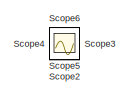
[diagram: root canvas - part 1/2, top right region]
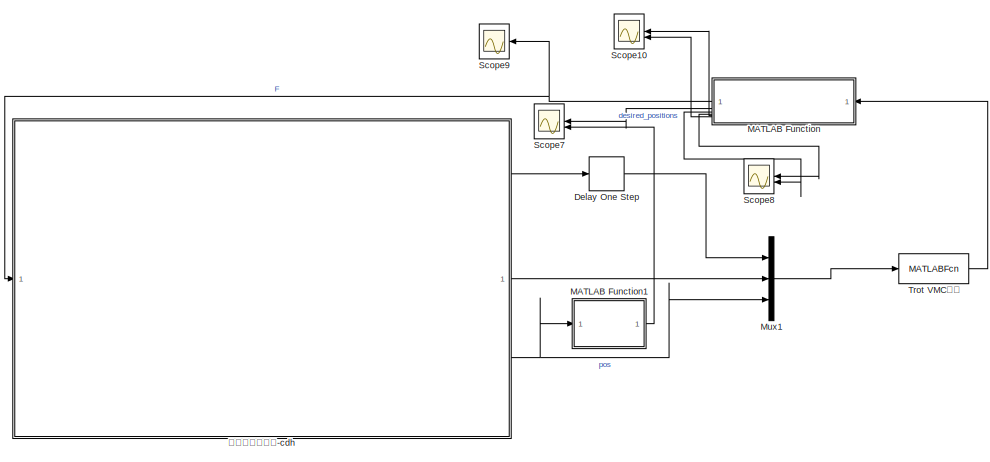
[diagram: root canvas - part 2/2, bottom left region]
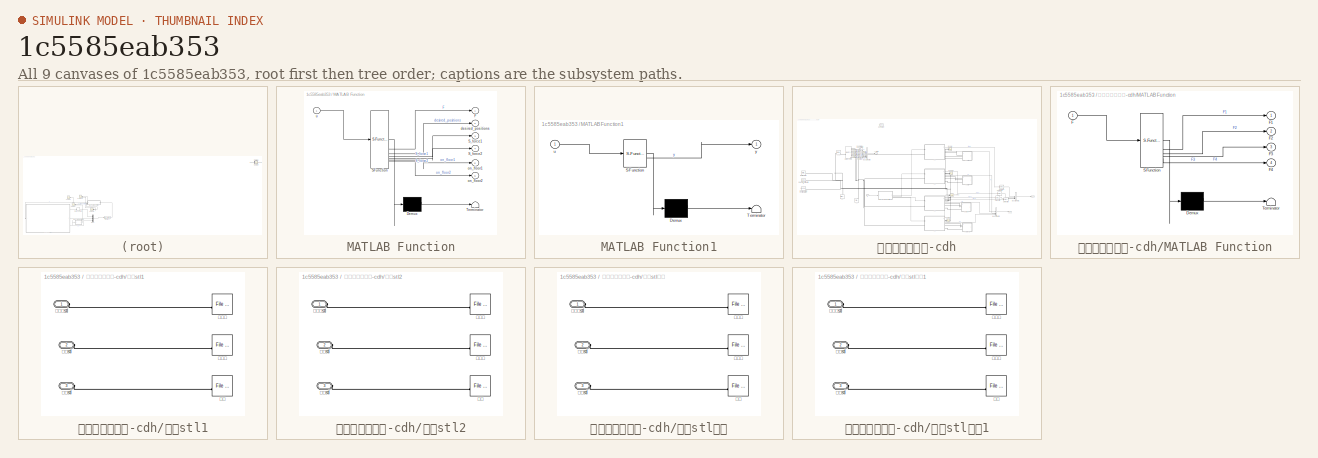
[diagram: thumbnail index - all 9 canvases of the model, root first then tree order]
MODEL slx_1c5585eab353
KIND model
CONFIG AbsTol = 1e-3
CONFIG EnableMultiTasking = on
CONFIG FixedStep = simulink_step
CONFIG MaxStep = 1e-4
CONFIG MinStep = 1e-4
CONFIG RelTol = 1e-3
CONFIG SampleTimeConstraint = Unconstrained
CONFIG SolverName = FixedStepAuto
CONFIG StartTime = 0.0
CONFIG StopTime = stop_time
BLOCK [Delay] Delay One Step
  DelayLength = 1
  InputPortMap = u0
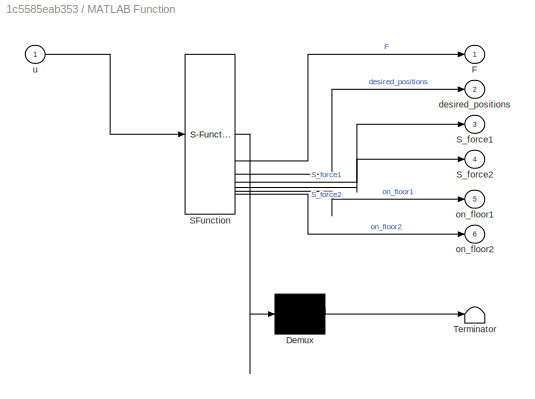
BLOCK [SubSystem] MATLAB Function
  ErrorFcn = Stateflow.Translate.translate
  LibrarySourceBlock = simulink/User-Defined\nFunctions/MATLAB Function
  NameLocation = top
  PermitHierarchicalResolution = ExplicitOnly
  SFBlockType = MATLAB Function
  TreatAsAtomicUnit = on
BLOCK [Demux] MATLAB Function/ Demux 
  Outputs = 1
BLOCK [S-Function] MATLAB Function/ SFunction 
  EnableBusSupport = on
  FunctionName = sf_sfun
  PortCounts = [1 7]
  SFcnIsStateOwnerBlock = off
  SFunctionDeploymentMode = off
  Tag = Stateflow S-Function 2
BLOCK [Terminator] MATLAB Function/ Terminator 
BLOCK [Outport] MATLAB Function/F
BLOCK [Outport] MATLAB Function/S_force1
  Port = 3
BLOCK [Outport] MATLAB Function/S_force2
  Port = 4
BLOCK [Outport] MATLAB Function/desired_positions
  Port = 2
BLOCK [Outport] MATLAB Function/on_floor1
  Port = 5
BLOCK [Outport] MATLAB Function/on_floor2
  Port = 6
BLOCK [Inport] MATLAB Function/u
BLOCK [SubSystem] MATLAB Function1
  ErrorFcn = Stateflow.Translate.translate
  LibrarySourceBlock = simulink/User-Defined\nFunctions/MATLAB Function
  PermitHierarchicalResolution = ExplicitOnly
  SFBlockType = MATLAB Function
  TreatAsAtomicUnit = on
BLOCK [Demux] MATLAB Function1/ Demux 
  Outputs = 1
BLOCK [S-Function] MATLAB Function1/ SFunction 
  EnableBusSupport = on
  FunctionName = sf_sfun
  PortCounts = [1 2]
  SFcnIsStateOwnerBlock = off
  SFunctionDeploymentMode = off
  Tag = Stateflow S-Function 1
BLOCK [Terminator] MATLAB Function1/ Terminator 
BLOCK [Inport] MATLAB Function1/u
BLOCK [Outport] MATLAB Function1/y
BLOCK [Mux] Mux1
  DisplayOption = bar
  Inputs = 3
BLOCK [Scope] Scope
  Floating = off
  IOType = viewer
  NumInputPorts = 1
  ScopeSpecificationString = Simulink.scopes.TimeScopeBlockCfg('CurrentConfiguration', extmgr.ConfigurationSet(extmgr.Configuration('Core','General UI',true),extmgr.Configuration('Core','Source UI',true),extmgr.Configuration('Sources','WiredSimulink',true),extmgr.Configuration('Visuals','Time Domain',true,'SerializedDisplays',{struct('MinYLimReal','-4.00254','MaxYLimReal','4.85091','YLabelReal','','MinYLimMag','0.00000','MaxY...<+1372ch>
BLOCK [Scope] Scope1
  Floating = off
  IOType = viewer
  NumInputPorts = 1
  ScopeSpecificationString = Simulink.scopes.TimeScopeBlockCfg('CurrentConfiguration', extmgr.ConfigurationSet(extmgr.Configuration('Core','General UI',true),extmgr.Configuration('Core','Source UI',true),extmgr.Configuration('Sources','WiredSimulink',true,'DataLoggingVariableName','ScopeData1'),extmgr.Configuration('Visuals','Time Domain',true,'SerializedDisplays',{struct('MinYLimReal','-0.37161','MaxYLimReal','0.13573','YLab...<+1386ch>
BLOCK [Scope] Scope10
  Floating = off
  NameLocation = top
  NumInputPorts = 2
  ScopeSpecificationString = Simulink.scopes.TimeScopeBlockCfg('CurrentConfiguration', extmgr.ConfigurationSet(extmgr.Configuration('Core','General UI',true),extmgr.Configuration('Core','Source UI',true),extmgr.Configuration('Sources','WiredSimulink',true,'DataLoggingVariableName','ScopeData12'),extmgr.Configuration('Visuals','Time Domain',true,'SerializedDisplays',{struct('MinYLimReal','-1.375','MaxYLimReal','2.375','YLabelR...<+2485ch>
BLOCK [Scope] Scope2
  Floating = off
  IOType = viewer
  NumInputPorts = 1
  ScopeSpecificationString = Simulink.scopes.TimeScopeBlockCfg('CurrentConfiguration', extmgr.ConfigurationSet(extmgr.Configuration('Core','General UI',true),extmgr.Configuration('Core','Source UI',true),extmgr.Configuration('Sources','WiredSimulink',true,'DataLoggingVariableName','ScopeData2'),extmgr.Configuration('Visuals','Time Domain',true,'SerializedDisplays',{struct('MinYLimReal','-2.00278','MaxYLimReal','1.14487','YLab...<+1389ch>
BLOCK [Scope] Scope3
  Floating = off
  IOType = viewer
  NumInputPorts = 1
  ScopeSpecificationString = Simulink.scopes.TimeScopeBlockCfg('CurrentConfiguration', extmgr.ConfigurationSet(extmgr.Configuration('Core','General UI',true),extmgr.Configuration('Core','Source UI',true),extmgr.Configuration('Sources','WiredSimulink',true,'DataLoggingVariableName','ScopeData3'),extmgr.Configuration('Visuals','Time Domain',true,'SerializedDisplays',{struct('MinYLimReal','-3.24154','MaxYLimReal','2.88505','YLab...<+1414ch>
BLOCK [Scope] Scope4
  Floating = off
  IOType = viewer
  NumInputPorts = 1
  ScopeSpecificationString = Simulink.scopes.TimeScopeBlockCfg('CurrentConfiguration', extmgr.ConfigurationSet(extmgr.Configuration('Core','General UI',true),extmgr.Configuration('Core','Source UI',true),extmgr.Configuration('Sources','WiredSimulink',true,'DataLoggingVariableName','ScopeData4'),extmgr.Configuration('Visuals','Time Domain',true,'SerializedDisplays',{struct('MinYLimReal','-0.37122','MaxYLimReal','0.13569','YLab...<+1411ch>
BLOCK [Scope] Scope5
  Floating = off
  IOType = viewer
  NumInputPorts = 1
  ScopeSpecificationString = Simulink.scopes.TimeScopeBlockCfg('CurrentConfiguration', extmgr.ConfigurationSet(extmgr.Configuration('Core','General UI',true),extmgr.Configuration('Core','Source UI',true),extmgr.Configuration('Sources','WiredSimulink',true,'DataLoggingVariableName','ScopeData5'),extmgr.Configuration('Visuals','Time Domain',true,'SerializedDisplays',{struct('MinYLimReal','-91.43647','MaxYLimReal','102.20707','Y...<+1396ch>
BLOCK [Scope] Scope6
  Floating = off
  IOType = viewer
  NumInputPorts = 1
  ScopeSpecificationString = Simulink.scopes.TimeScopeBlockCfg('CurrentConfiguration', extmgr.ConfigurationSet(extmgr.Configuration('Core','General UI',true),extmgr.Configuration('Core','Source UI',true),extmgr.Configuration('Sources','WiredSimulink',true,'DataLoggingVariableName','ScopeData6'),extmgr.Configuration('Visuals','Time Domain',true,'SerializedDisplays',{struct('MinYLimReal','-18.94018','MaxYLimReal','25.48686','YL...<+1420ch>
BLOCK [Scope] Scope7
  Floating = off
  NameLocation = top
  NumInputPorts = 2
  ScopeSpecificationString = Simulink.scopes.TimeScopeBlockCfg('CurrentConfiguration', extmgr.ConfigurationSet(extmgr.Configuration('Core','General UI',true),extmgr.Configuration('Core','Source UI',true),extmgr.Configuration('Sources','WiredSimulink',true,'DataLoggingVariableName','ScopeData9'),extmgr.Configuration('Visuals','Time Domain',true,'SerializedDisplays',{struct('MinYLimReal','-0.41326','MaxYLimReal','0.08871','YLab...<+2835ch>
BLOCK [Scope] Scope8
  Floating = off
  NameLocation = top
  NumInputPorts = 2
  ScopeSpecificationString = Simulink.scopes.TimeScopeBlockCfg('CurrentConfiguration', extmgr.ConfigurationSet(extmgr.Configuration('Core','General UI',true),extmgr.Configuration('Core','Source UI',true),extmgr.Configuration('Sources','WiredSimulink',true,'DataLoggingVariableName','ScopeData10'),extmgr.Configuration('Visuals','Time Domain',true,'SerializedDisplays',{struct('MinYLimReal','-16.42607','MaxYLimReal','137.83459','...<+2448ch>
BLOCK [Scope] Scope9
  Floating = off
  NameLocation = top
  NumInputPorts = 2
  ScopeSpecificationString = Simulink.scopes.TimeScopeBlockCfg('CurrentConfiguration', extmgr.ConfigurationSet(extmgr.Configuration('Core','General UI',true),extmgr.Configuration('Core','Source UI',true),extmgr.Configuration('Sources','WiredSimulink',true,'DataLoggingVariableName','ScopeData11'),extmgr.Configuration('Visuals','Time Domain',true,'SerializedDisplays',{struct('MinYLimReal','-1451.09555','MaxYLimReal','2684.85992...<+2364ch>
BLOCK [MATLABFcn] Trot VMC算法
  MATLABFcn = VMC_Trot_Control
  Output1D = off
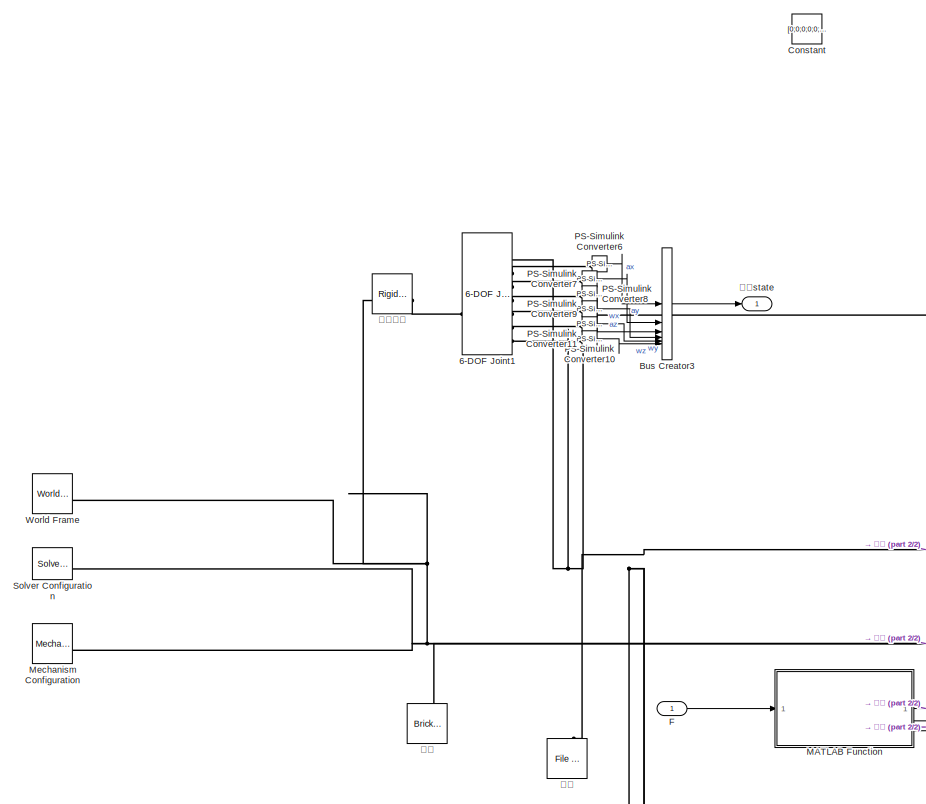
[diagram: 四足机器人模型-cdh - part 1/2, middle left region]
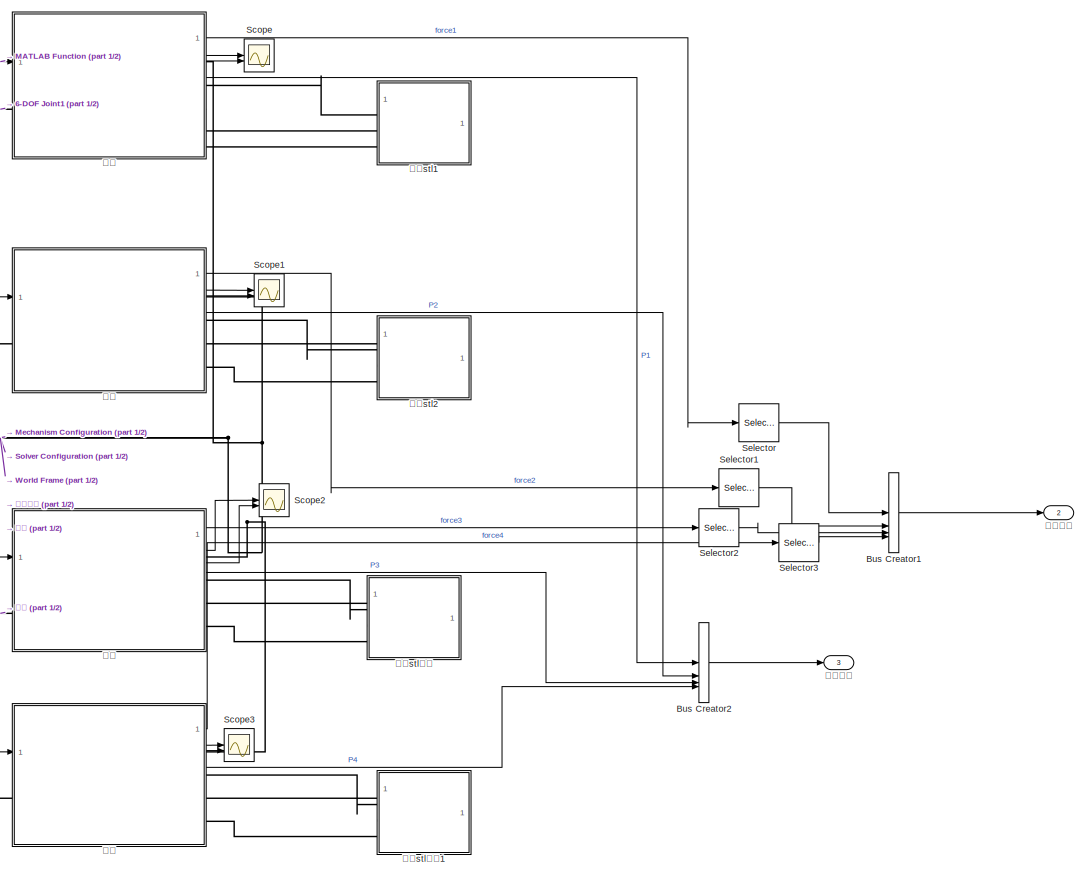
[diagram: 四足机器人模型-cdh - part 2/2, right side, full height]
BLOCK [SubSystem] 四足机器人模型-cdh
BLOCK [Reference] 四足机器人模型-cdh/6-DOF Joint1  REF=sm_lib/Joints/6-DOF Joint
  SourceBlock = sm_lib/Joints/6-DOF Joint
  SourceType = 6-DOF Joint
BLOCK [BusCreator] 四足机器人模型-cdh/Bus Creator1
  DisplayOption = bar
  InheritFromInputs = on
  Inputs = 4
BLOCK [BusCreator] 四足机器人模型-cdh/Bus Creator2
  DisplayOption = bar
  InheritFromInputs = on
  Inputs = 4
BLOCK [BusCreator] 四足机器人模型-cdh/Bus Creator3
  DisplayOption = bar
  InheritFromInputs = on
  Inputs = 6
BLOCK [Constant] 四足机器人模型-cdh/Constant
  Commented = on
  Value = [0;0;0;0;0;0]
BLOCK [Inport] 四足机器人模型-cdh/F
BLOCK [SubSystem] 四足机器人模型-cdh/MATLAB Function
  ErrorFcn = Stateflow.Translate.translate
  LibrarySourceBlock = simulink/User-Defined\nFunctions/MATLAB Function
  PermitHierarchicalResolution = ExplicitOnly
  SFBlockType = MATLAB Function
  TreatAsAtomicUnit = on
BLOCK [Demux] 四足机器人模型-cdh/MATLAB Function/ Demux 
  Outputs = 1
BLOCK [S-Function] 四足机器人模型-cdh/MATLAB Function/ SFunction 
  EnableBusSupport = on
  FunctionName = sf_sfun
  PortCounts = [1 5]
  SFcnIsStateOwnerBlock = off
  SFunctionDeploymentMode = off
  Tag = Stateflow S-Function 36
BLOCK [Terminator] 四足机器人模型-cdh/MATLAB Function/ Terminator 
BLOCK [Inport] 四足机器人模型-cdh/MATLAB Function/F
BLOCK [Outport] 四足机器人模型-cdh/MATLAB Function/F1
BLOCK [Outport] 四足机器人模型-cdh/MATLAB Function/F2
  Port = 2
BLOCK [Outport] 四足机器人模型-cdh/MATLAB Function/F3
  Port = 3
BLOCK [Outport] 四足机器人模型-cdh/MATLAB Function/F4
  Port = 4
BLOCK [Reference] 四足机器人模型-cdh/Mechanism Configuration  REF=sm_lib/Utilities/Mechanism
Configuration
  SourceBlock = sm_lib/Utilities/Mechanism\nConfiguration
  SourceType = Mechanism\nConfiguration
BLOCK [Reference] 四足机器人模型-cdh/PS-Simulink Converter10  REF=nesl_utility/PS-Simulink
Converter
  SourceBlock = nesl_utility/PS-Simulink\nConverter
  SourceType = PS-Simulink\nConverter
BLOCK [Reference] 四足机器人模型-cdh/PS-Simulink Converter11  REF=nesl_utility/PS-Simulink
Converter
  SourceBlock = nesl_utility/PS-Simulink\nConverter
  SourceType = PS-Simulink\nConverter
BLOCK [Reference] 四足机器人模型-cdh/PS-Simulink Converter6  REF=nesl_utility/PS-Simulink
Converter
  SourceBlock = nesl_utility/PS-Simulink\nConverter
  SourceType = PS-Simulink\nConverter
BLOCK [Reference] 四足机器人模型-cdh/PS-Simulink Converter7  REF=nesl_utility/PS-Simulink
Converter
  SourceBlock = nesl_utility/PS-Simulink\nConverter
  SourceType = PS-Simulink\nConverter
BLOCK [Reference] 四足机器人模型-cdh/PS-Simulink Converter8  REF=nesl_utility/PS-Simulink
Converter
  SourceBlock = nesl_utility/PS-Simulink\nConverter
  SourceType = PS-Simulink\nConverter
BLOCK [Reference] 四足机器人模型-cdh/PS-Simulink Converter9  REF=nesl_utility/PS-Simulink
Converter
  SourceBlock = nesl_utility/PS-Simulink\nConverter
  SourceType = PS-Simulink\nConverter
BLOCK [Scope] 四足机器人模型-cdh/Scope
  Floating = off
  NumInputPorts = 2
  ScopeSpecificationString = Simulink.scopes.TimeScopeBlockCfg('CurrentConfiguration', extmgr.ConfigurationSet(extmgr.Configuration('Core','General UI',true),extmgr.Configuration('Core','Source UI',true),extmgr.Configuration('Sources','WiredSimulink',true,'DataLoggingVariableName','ScopeData2'),extmgr.Configuration('Visuals','Time Domain',true,'SerializedDisplays',{struct('MinYLimReal','-49.13292','MaxYLimReal','91.29371','YL...<+1416ch>
BLOCK [Scope] 四足机器人模型-cdh/Scope1
  Floating = off
  NumInputPorts = 2
  ScopeSpecificationString = Simulink.scopes.TimeScopeBlockCfg('CurrentConfiguration', extmgr.ConfigurationSet(extmgr.Configuration('Core','General UI',true),extmgr.Configuration('Core','Source UI',true),extmgr.Configuration('Sources','WiredSimulink',true,'DataLoggingVariableName','ScopeData3'),extmgr.Configuration('Visuals','Time Domain',true),extmgr.Configuration('Tools','Plot Navigation',true),extmgr.Configuration('Tools',...<+58ch>
BLOCK [Scope] 四足机器人模型-cdh/Scope2
  Floating = off
  NumInputPorts = 2
  ScopeSpecificationString = Simulink.scopes.TimeScopeBlockCfg('CurrentConfiguration', extmgr.ConfigurationSet(extmgr.Configuration('Core','General UI',true),extmgr.Configuration('Core','Source UI',true),extmgr.Configuration('Sources','WiredSimulink',true,'DataLoggingVariableName','ScopeData5'),extmgr.Configuration('Visuals','Time Domain',true),extmgr.Configuration('Tools','Plot Navigation',true),extmgr.Configuration('Tools',...<+58ch>
BLOCK [Scope] 四足机器人模型-cdh/Scope3
  Floating = off
  NumInputPorts = 2
  ScopeSpecificationString = Simulink.scopes.TimeScopeBlockCfg('CurrentConfiguration', extmgr.ConfigurationSet(extmgr.Configuration('Core','General UI',true),extmgr.Configuration('Core','Source UI',true),extmgr.Configuration('Sources','WiredSimulink',true,'DataLoggingVariableName','ScopeData6'),extmgr.Configuration('Visuals','Time Domain',true),extmgr.Configuration('Tools','Plot Navigation',true),extmgr.Configuration('Tools',...<+58ch>
BLOCK [Selector] 四足机器人模型-cdh/Selector
  IndexOptions = Index vector (dialog)
  Indices = 1
  InputPortWidth = 11
  OutputSizes = 1
BLOCK [Selector] 四足机器人模型-cdh/Selector1
  IndexOptions = Index vector (dialog)
  Indices = 1
  InputPortWidth = 11
  OutputSizes = 1
BLOCK [Selector] 四足机器人模型-cdh/Selector2
  IndexOptions = Index vector (dialog)
  Indices = 1
  InputPortWidth = 11
  OutputSizes = 1
BLOCK [Selector] 四足机器人模型-cdh/Selector3
  IndexOptions = Index vector (dialog)
  Indices = 1
  InputPortWidth = 11
  OutputSizes = 1
BLOCK [Reference] 四足机器人模型-cdh/Solver Configuration  REF=nesl_utility/Solver
Configuration
  SourceBlock = nesl_utility/Solver\nConfiguration
  SourceType = Solver\nConfiguration
BLOCK [Reference] 四足机器人模型-cdh/World Frame  REF=sm_lib/Frames and
Transforms/World Frame
  SourceBlock = sm_lib/Frames and\nTransforms/World Frame
  SourceType = World Frame
BLOCK [Reference] 四足机器人模型-cdh/主体  REF=sm_lib/Body Elements/File Solid
  SourceBlock = sm_lib/Body Elements/File Solid
  SourceType = File Solid
BLOCK [Reference] 四足机器人模型-cdh/初始高度  REF=sm_lib/Frames and
Transforms/Rigid
Transform
  SourceBlock = sm_lib/Frames and\nTransforms/Rigid\nTransform
  SourceType = Rigid\nTransform
BLOCK [SubSystem] 四足机器人模型-cdh/右前
  ReferencedSubsystem = vmc_single_foot
  dir = -1
  dir2 = 1
BLOCK [SubSystem] 四足机器人模型-cdh/右后 
  ReferencedSubsystem = vmc_single_foot
  dir = -1
  dir2 = -1
BLOCK [Reference] 四足机器人模型-cdh/地面  REF=sm_lib/Body Elements/Brick Solid
  SourceBlock = sm_lib/Body Elements/Brick Solid
  SourceType = Brick Solid
BLOCK [SubSystem] 四足机器人模型-cdh/左前
  ReferencedSubsystem = vmc_single_foot
  dir = 1
  dir2 = 1
BLOCK [SubSystem] 四足机器人模型-cdh/左后
  ReferencedSubsystem = vmc_single_foot
  dir = 1
  dir2 = -1
BLOCK [Outport] 四足机器人模型-cdh/机体state
BLOCK [SubSystem] 四足机器人模型-cdh/腿部stl1
BLOCK [PMIOPort] 四足机器人模型-cdh/腿部stl1/大腿stl 
  Port = 2
  Side = Left
BLOCK [Reference] 四足机器人模型-cdh/腿部stl1/小腿  REF=sm_lib/Body Elements/File Solid
  SourceBlock = sm_lib/Body Elements/File Solid
  SourceType = File Solid
BLOCK [PMIOPort] 四足机器人模型-cdh/腿部stl1/小腿stl 
  Port = 3
  Side = Left
BLOCK [Reference] 四足机器人模型-cdh/腿部stl1/左大腿  REF=sm_lib/Body Elements/File Solid
  SourceBlock = sm_lib/Body Elements/File Solid
  SourceType = File Solid
BLOCK [Reference] 四足机器人模型-cdh/腿部stl1/髋关节  REF=sm_lib/Body Elements/File Solid
  SourceBlock = sm_lib/Body Elements/File Solid
  SourceType = File Solid
BLOCK [PMIOPort] 四足机器人模型-cdh/腿部stl1/髋关节stl 
  Side = Left
BLOCK [SubSystem] 四足机器人模型-cdh/腿部stl2
BLOCK [PMIOPort] 四足机器人模型-cdh/腿部stl2/大腿stl 
  Port = 2
  Side = Left
BLOCK [Reference] 四足机器人模型-cdh/腿部stl2/小腿  REF=sm_lib/Body Elements/File Solid
  SourceBlock = sm_lib/Body Elements/File Solid
  SourceType = File Solid
BLOCK [PMIOPort] 四足机器人模型-cdh/腿部stl2/小腿stl 
  Port = 3
  Side = Left
BLOCK [Reference] 四足机器人模型-cdh/腿部stl2/左大腿  REF=sm_lib/Body Elements/File Solid
  SourceBlock = sm_lib/Body Elements/File Solid
  SourceType = File Solid
BLOCK [Reference] 四足机器人模型-cdh/腿部stl2/髋关节  REF=sm_lib/Body Elements/File Solid
  SourceBlock = sm_lib/Body Elements/File Solid
  SourceType = File Solid
BLOCK [PMIOPort] 四足机器人模型-cdh/腿部stl2/髋关节stl 
  Side = Left
BLOCK [SubSystem] 四足机器人模型-cdh/腿部stl镜像
BLOCK [PMIOPort] 四足机器人模型-cdh/腿部stl镜像/大腿stl 
  Port = 2
  Side = Left
BLOCK [Reference] 四足机器人模型-cdh/腿部stl镜像/小腿  REF=sm_lib/Body Elements/File Solid
  SourceBlock = sm_lib/Body Elements/File Solid
  SourceType = File Solid
BLOCK [PMIOPort] 四足机器人模型-cdh/腿部stl镜像/小腿stl 
  Port = 3
  Side = Left
BLOCK [Reference] 四足机器人模型-cdh/腿部stl镜像/左大腿  REF=sm_lib/Body Elements/File Solid
  SourceBlock = sm_lib/Body Elements/File Solid
  SourceType = File Solid
BLOCK [Reference] 四足机器人模型-cdh/腿部stl镜像/髋关节  REF=sm_lib/Body Elements/File Solid
  SourceBlock = sm_lib/Body Elements/File Solid
  SourceType = File Solid
BLOCK [PMIOPort] 四足机器人模型-cdh/腿部stl镜像/髋关节stl 
  Side = Left
BLOCK [SubSystem] 四足机器人模型-cdh/腿部stl镜像1
BLOCK [PMIOPort] 四足机器人模型-cdh/腿部stl镜像1/大腿stl 
  Port = 2
  Side = Left
BLOCK [Reference] 四足机器人模型-cdh/腿部stl镜像1/小腿  REF=sm_lib/Body Elements/File Solid
  SourceBlock = sm_lib/Body Elements/File Solid
  SourceType = File Solid
BLOCK [PMIOPort] 四足机器人模型-cdh/腿部stl镜像1/小腿stl 
  Port = 3
  Side = Left
BLOCK [Reference] 四足机器人模型-cdh/腿部stl镜像1/左大腿  REF=sm_lib/Body Elements/File Solid
  SourceBlock = sm_lib/Body Elements/File Solid
  SourceType = File Solid
BLOCK [Reference] 四足机器人模型-cdh/腿部stl镜像1/髋关节  REF=sm_lib/Body Elements/File Solid
  SourceBlock = sm_lib/Body Elements/File Solid
  SourceType = File Solid
BLOCK [PMIOPort] 四足机器人模型-cdh/腿部stl镜像1/髋关节stl 
  Side = Left
BLOCK [Outport] 四足机器人模型-cdh/足端位置
  Port = 3
BLOCK [Outport] 四足机器人模型-cdh/足端受力
  Port = 2
LINE Delay One Step:1 -> Mux1:1
LINE MATLAB Function1:1 -> Scope7:2
NET MATLAB Function:1 -> Scope9:1, 四足机器人模型-cdh:1
LINE MATLAB Function:2 -> Scope7:1
LINE MATLAB Function:3 -> Scope8:2
LINE MATLAB Function:4 -> Scope8:1
LINE MATLAB Function:5 -> Scope10:1
LINE MATLAB Function:6 -> Scope10:2
LINE Mux1:1 -> Trot VMC算法:1
LINE Trot VMC算法:1 -> MATLAB Function:1
LINE 四足机器人模型-cdh/Bus Creator1:1 -> 四足机器人模型-cdh/足端受力:1
LINE 四足机器人模型-cdh/Bus Creator2:1 -> 四足机器人模型-cdh/足端位置:1
LINE 四足机器人模型-cdh/Bus Creator3:1 -> 四足机器人模型-cdh/机体state:1
LINE 四足机器人模型-cdh/F:1 -> 四足机器人模型-cdh/MATLAB Function:1
LINE 四足机器人模型-cdh/MATLAB Function:1 -> 四足机器人模型-cdh/左前:1
LINE 四足机器人模型-cdh/MATLAB Function:2 -> 四足机器人模型-cdh/左后:1
LINE 四足机器人模型-cdh/MATLAB Function:3 -> 四足机器人模型-cdh/右后 :1
LINE 四足机器人模型-cdh/MATLAB Function:4 -> 四足机器人模型-cdh/右前:1
LINE 四足机器人模型-cdh/PS-Simulink Converter10:1 -> 四足机器人模型-cdh/Bus Creator3:5
LINE 四足机器人模型-cdh/PS-Simulink Converter11:1 -> 四足机器人模型-cdh/Bus Creator3:6
LINE 四足机器人模型-cdh/PS-Simulink Converter6:1 -> 四足机器人模型-cdh/Bus Creator3:1
LINE 四足机器人模型-cdh/PS-Simulink Converter7:1 -> 四足机器人模型-cdh/Bus Creator3:2
LINE 四足机器人模型-cdh/PS-Simulink Converter8:1 -> 四足机器人模型-cdh/Bus Creator3:3
LINE 四足机器人模型-cdh/PS-Simulink Converter9:1 -> 四足机器人模型-cdh/Bus Creator3:4
LINE 四足机器人模型-cdh/Selector1:1 -> 四足机器人模型-cdh/Bus Creator1:2
LINE 四足机器人模型-cdh/Selector2:1 -> 四足机器人模型-cdh/Bus Creator1:3
LINE 四足机器人模型-cdh/Selector3:1 -> 四足机器人模型-cdh/Bus Creator1:4
LINE 四足机器人模型-cdh/Selector:1 -> 四足机器人模型-cdh/Bus Creator1:1
LINE 四足机器人模型-cdh/右前:1 -> 四足机器人模型-cdh/Selector3:1
LINE 四足机器人模型-cdh/右前:2 -> 四足机器人模型-cdh/Scope3:1
LINE 四足机器人模型-cdh/右前:3 -> 四足机器人模型-cdh/Scope3:2
LINE 四足机器人模型-cdh/右前:4 -> 四足机器人模型-cdh/Bus Creator2:4
LINE 四足机器人模型-cdh/右后 :1 -> 四足机器人模型-cdh/Selector2:1
LINE 四足机器人模型-cdh/右后 :2 -> 四足机器人模型-cdh/Scope2:1
LINE 四足机器人模型-cdh/右后 :3 -> 四足机器人模型-cdh/Scope2:2
LINE 四足机器人模型-cdh/右后 :4 -> 四足机器人模型-cdh/Bus Creator2:3
LINE 四足机器人模型-cdh/左前:1 -> 四足机器人模型-cdh/Selector:1
LINE 四足机器人模型-cdh/左前:2 -> 四足机器人模型-cdh/Scope:1
LINE 四足机器人模型-cdh/左前:3 -> 四足机器人模型-cdh/Scope:2
LINE 四足机器人模型-cdh/左前:4 -> 四足机器人模型-cdh/Bus Creator2:1
LINE 四足机器人模型-cdh/左后:1 -> 四足机器人模型-cdh/Selector1:1
LINE 四足机器人模型-cdh/左后:2 -> 四足机器人模型-cdh/Scope1:1
LINE 四足机器人模型-cdh/左后:3 -> 四足机器人模型-cdh/Scope1:2
LINE 四足机器人模型-cdh/左后:4 -> 四足机器人模型-cdh/Bus Creator2:2
LINE 四足机器人模型-cdh:1 -> Delay One Step:1
LINE 四足机器人模型-cdh:2 -> Mux1:2
NET 四足机器人模型-cdh:3 -> MATLAB Function1:1, Mux1:3
PLINE 四足机器人模型-cdh/6-DOF Joint1:LConn1 -- 四足机器人模型-cdh/初始高度:RConn1
PNET net1: 四足机器人模型-cdh/6-DOF Joint1:RConn1 -- 四足机器人模型-cdh/主体:RConn1 -- 四足机器人模型-cdh/右前:LConn1 -- 四足机器人模型-cdh/右后 :LConn1 -- 四足机器人模型-cdh/左前:LConn1 -- 四足机器人模型-cdh/左后:LConn1
PLINE 四足机器人模型-cdh/6-DOF Joint1:RConn2 -- 四足机器人模型-cdh/PS-Simulink Converter6:LConn1
PLINE 四足机器人模型-cdh/6-DOF Joint1:RConn3 -- 四足机器人模型-cdh/PS-Simulink Converter7:LConn1
PLINE 四足机器人模型-cdh/6-DOF Joint1:RConn4 -- 四足机器人模型-cdh/PS-Simulink Converter8:LConn1
PLINE 四足机器人模型-cdh/6-DOF Joint1:RConn5 -- 四足机器人模型-cdh/PS-Simulink Converter9:LConn1
PLINE 四足机器人模型-cdh/6-DOF Joint1:RConn6 -- 四足机器人模型-cdh/PS-Simulink Converter10:LConn1
PLINE 四足机器人模型-cdh/6-DOF Joint1:RConn7 -- 四足机器人模型-cdh/PS-Simulink Converter11:LConn1
PNET net2: 四足机器人模型-cdh/Mechanism Configuration:RConn1 -- 四足机器人模型-cdh/Solver Configuration:RConn1 -- 四足机器人模型-cdh/World Frame:RConn1 -- 四足机器人模型-cdh/初始高度:LConn1 -- 四足机器人模型-cdh/右前:RConn1 -- 四足机器人模型-cdh/右后 :RConn1 -- 四足机器人模型-cdh/地面:RConn1 -- 四足机器人模型-cdh/左前:RConn1 -- 四足机器人模型-cdh/左后:RConn1
PLINE 四足机器人模型-cdh/右前:RConn2 -- 四足机器人模型-cdh/腿部stl镜像1:LConn1
PLINE 四足机器人模型-cdh/右前:RConn3 -- 四足机器人模型-cdh/腿部stl镜像1:LConn2
PLINE 四足机器人模型-cdh/右前:RConn4 -- 四足机器人模型-cdh/腿部stl镜像1:LConn3
PLINE 四足机器人模型-cdh/右后 :RConn2 -- 四足机器人模型-cdh/腿部stl镜像:LConn1
PLINE 四足机器人模型-cdh/右后 :RConn3 -- 四足机器人模型-cdh/腿部stl镜像:LConn2
PLINE 四足机器人模型-cdh/右后 :RConn4 -- 四足机器人模型-cdh/腿部stl镜像:LConn3
PLINE 四足机器人模型-cdh/左前:RConn2 -- 四足机器人模型-cdh/腿部stl1:LConn1
PLINE 四足机器人模型-cdh/左前:RConn3 -- 四足机器人模型-cdh/腿部stl1:LConn2
PLINE 四足机器人模型-cdh/左前:RConn4 -- 四足机器人模型-cdh/腿部stl1:LConn3
PLINE 四足机器人模型-cdh/左后:RConn2 -- 四足机器人模型-cdh/腿部stl2:LConn1
PLINE 四足机器人模型-cdh/左后:RConn3 -- 四足机器人模型-cdh/腿部stl2:LConn2
PLINE 四足机器人模型-cdh/左后:RConn4 -- 四足机器人模型-cdh/腿部stl2:LConn3
PLINE 四足机器人模型-cdh/腿部stl1/大腿stl :RConn1 -- 四足机器人模型-cdh/腿部stl1/左大腿:LConn1
PLINE 四足机器人模型-cdh/腿部stl1/小腿:LConn1 -- 四足机器人模型-cdh/腿部stl1/小腿stl :RConn1
PLINE 四足机器人模型-cdh/腿部stl1/髋关节:LConn1 -- 四足机器人模型-cdh/腿部stl1/髋关节stl :RConn1
PLINE 四足机器人模型-cdh/腿部stl2/大腿stl :RConn1 -- 四足机器人模型-cdh/腿部stl2/左大腿:LConn1
PLINE 四足机器人模型-cdh/腿部stl2/小腿:LConn1 -- 四足机器人模型-cdh/腿部stl2/小腿stl :RConn1
PLINE 四足机器人模型-cdh/腿部stl2/髋关节:LConn1 -- 四足机器人模型-cdh/腿部stl2/髋关节stl :RConn1
PLINE 四足机器人模型-cdh/腿部stl镜像/大腿stl :RConn1 -- 四足机器人模型-cdh/腿部stl镜像/左大腿:LConn1
PLINE 四足机器人模型-cdh/腿部stl镜像/小腿:LConn1 -- 四足机器人模型-cdh/腿部stl镜像/小腿stl :RConn1
PLINE 四足机器人模型-cdh/腿部stl镜像/髋关节:LConn1 -- 四足机器人模型-cdh/腿部stl镜像/髋关节stl :RConn1
PLINE 四足机器人模型-cdh/腿部stl镜像1/大腿stl :RConn1 -- 四足机器人模型-cdh/腿部stl镜像1/左大腿:LConn1
PLINE 四足机器人模型-cdh/腿部stl镜像1/小腿:LConn1 -- 四足机器人模型-cdh/腿部stl镜像1/小腿stl :RConn1
PLINE 四足机器人模型-cdh/腿部stl镜像1/髋关节:LConn1 -- 四足机器人模型-cdh/腿部stl镜像1/髋关节stl :RConn1
note: NET lines group one-source signal fan-out (src -> all destinations, sorted); 1:1 wires keep LINE; PNET lines group multi-terminal physical nets as a canonical sorted terminal list (undirected conserving connections); 2-terminal nets keep the pairwise PLINE form
CHART MATLAB Function1 states=1 transitions=1
  STATE_LABEL 'eML_blk_kernel()'
  STATE_LABEL "SCRIPT:\nfunction y = fcn(u)\n\n\npos = u(1:12);\n % 将足端位置赋值并重塑为合适的矩阵形式（num_legs 行 3 列，这里 num_legs = 4）\ny = reshape(pos, 3, []).';\n\nend"
CHART MATLAB Function states=1 transitions=1
  STATE_LABEL 'eML_blk_kernel()'
  STATE_LABEL 'SCRIPT:\nfunction [F,desired_positions,S_force1,S_force2,on_floor1,on_floor2]= fcn(u)\n \ndesired_positions = u(1:4, :);\nF = u(5:8, :);\n\nS_force1 = u(9,:);\nS_force2 = u(10,:);\non_floor1 = u(11,:);\non_floor2 = u(12,:);\n\nend'
CHART 四足机器人模型-cdh/MATLAB Function states=1 transitions=1
  STATE_LABEL 'eML_blk_kernel()'
  STATE_LABEL "SCRIPT:\n% 将整体力矩阵F拆分成四条腿对应的力的子函数\nfunction [F1, F2, F3, F4] = split_force_matrix(F)\n    F1 = F(1, :).';\n    F2 = F(2, :).';\n    F3 = F(3, :).';\n    F4 = F(4, :).';\nend"
CHART  states=0 transitions=0
CHART  states=0 transitions=0
CHART  states=0 transitions=0
